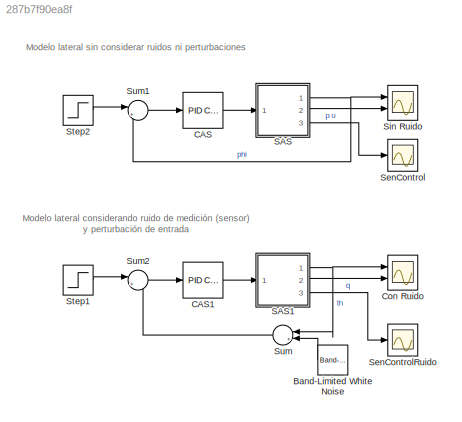
MODEL slx_287b7f90ea8f
KIND model
CONFIG AbsTol = auto
CONFIG EnableMultiTasking = off
CONFIG FixedStep = auto
CONFIG MaxStep = auto
CONFIG MinStep = auto
CONFIG RelTol = 1e-3
CONFIG SampleTimeConstraint = Unconstrained
CONFIG SolverName = VariableStepAuto
CONFIG StartTime = 0.0
CONFIG StopTime = 15
BLOCK [Reference] Band-Limited White Noise  REF=simulink/Sources/Band-Limited
White Noise
  Ports = [0, 1]
  SourceBlock = simulink/Sources/Band-Limited\nWhite Noise
  SourceProductBaseCode = SL
  SourceType = Band-Limited White Noise.
BLOCK [Reference] CAS  REF=slpidlib/PID Controller
  Ports = [1, 1]
  SourceBlock = slpidlib/PID Controller
  SourceProductBaseCode = SL
  SourceType = PID 1dof
BLOCK [Reference] CAS1  REF=slpidlib/PID Controller
  Ports = [1, 1]
  SourceBlock = slpidlib/PID Controller
  SourceProductBaseCode = SL
  SourceType = PID 1dof
BLOCK [Scope] Con Ruido
  Floating = off
  NumInputPorts = 2
  Ports = [2]
  ScopeSpecificationString = Simulink.scopes.TimeScopeBlockCfg('CurrentConfiguration', extmgr.ConfigurationSet(extmgr.Configuration('Core','General UI',true),extmgr.Configuration('Core','Source UI',true),extmgr.Configuration('Sources','WiredSimulink',true,'DataLoggingVariableName','ScopeData1'),extmgr.Configuration('Visuals','Time Domain',true,'PlotType','Line','SerializedDisplays',{struct('MinYLimReal','-17.09732','MaxYLimRe...<+2017ch>
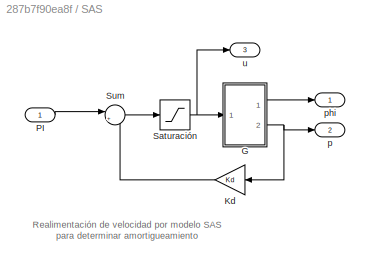
BLOCK [SubSystem] SAS
  Ports = [1, 3]
  RequestExecContextInheritance = off
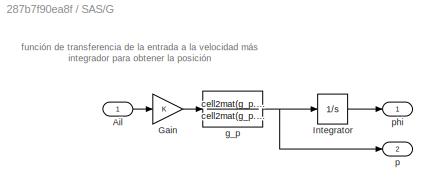
BLOCK [SubSystem] SAS/G
  Ports = [1, 2]
  RequestExecContextInheritance = off
BLOCK [Inport] SAS/G/Ail
BLOCK [Gain] SAS/G/Gain
BLOCK [Integrator] SAS/G/Integrator
  Ports = [1, 1]
BLOCK [TransferFcn] SAS/G/g_p
  Denominator = cell2mat(g_p.Denominator)
  Numerator = cell2mat(g_p.Numerator)
BLOCK [Outport] SAS/G/p
  Port = 2
BLOCK [Outport] SAS/G/phi
BLOCK [Gain] SAS/Kd
  Gain = Kd
BLOCK [Inport] SAS/PI
BLOCK [Saturate] SAS/Saturación
  LowerLimit = -30
  UpperLimit = 30
BLOCK [Sum] SAS/Sum
  Inputs = |+-
  Ports = [2, 1]
BLOCK [Outport] SAS/p
  Port = 2
BLOCK [Outport] SAS/phi
BLOCK [Outport] SAS/u
  Port = 3
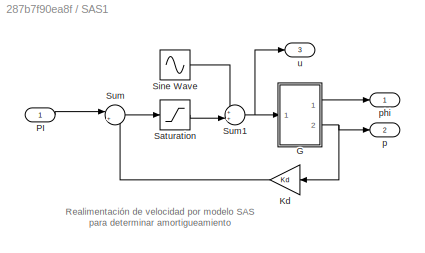
BLOCK [SubSystem] SAS1
  Ports = [1, 3]
  RequestExecContextInheritance = off
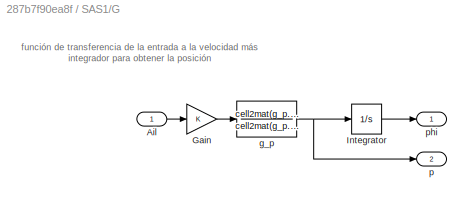
BLOCK [SubSystem] SAS1/G
  Ports = [1, 2]
  RequestExecContextInheritance = off
BLOCK [Inport] SAS1/G/Ail
BLOCK [Gain] SAS1/G/Gain
BLOCK [Integrator] SAS1/G/Integrator
  Ports = [1, 1]
BLOCK [TransferFcn] SAS1/G/g_p
  Denominator = cell2mat(g_p.Denominator)
  Numerator = cell2mat(g_p.Numerator)
BLOCK [Outport] SAS1/G/p
  Port = 2
BLOCK [Outport] SAS1/G/phi
BLOCK [Gain] SAS1/Kd
  Gain = Kd
BLOCK [Inport] SAS1/PI
BLOCK [Saturate] SAS1/Saturation
  LowerLimit = -30
  UpperLimit = 30
BLOCK [Sin] SAS1/Sine Wave
  Frequency = 12*pi
  Ports = [0, 1]
  SampleTime = 0
BLOCK [Sum] SAS1/Sum
  Inputs = |+-
  Ports = [2, 1]
BLOCK [Sum] SAS1/Sum1
  Inputs = ++|
  Ports = [2, 1]
BLOCK [Outport] SAS1/p
  Port = 2
BLOCK [Outport] SAS1/phi
BLOCK [Outport] SAS1/u
  Port = 3
BLOCK [Scope] SenControl
  Floating = off
  NumInputPorts = 1
  Ports = [1]
  ScopeSpecificationString = Simulink.scopes.TimeScopeBlockCfg('CurrentConfiguration', extmgr.ConfigurationSet(extmgr.Configuration('Core','General UI',true),extmgr.Configuration('Core','Source UI',true),extmgr.Configuration('Sources','WiredSimulink',true,'DataLoggingVariableName','ScopeData1'),extmgr.Configuration('Visuals','Time Domain',true,'SerializedDisplays',{struct('MinYLimReal','-3.54263','MaxYLimReal','33.72696','YLa...<+1490ch>
BLOCK [Scope] SenControlRuido
  Floating = off
  NumInputPorts = 1
  Ports = [1]
  ScopeSpecificationString = Simulink.scopes.TimeScopeBlockCfg('CurrentConfiguration', extmgr.ConfigurationSet(extmgr.Configuration('Core','General UI',true),extmgr.Configuration('Core','Source UI',true),extmgr.Configuration('Sources','WiredSimulink',true,'DataLoggingVariableName','ScopeData2'),extmgr.Configuration('Visuals','Time Domain',true,'SerializedDisplays',{struct('MinYLimReal','-37.9431','MaxYLimReal','31.5427','YLab...<+1493ch>
BLOCK [Scope] Sin Ruido
  Floating = off
  NumInputPorts = 2
  Ports = [2]
  ScopeSpecificationString = Simulink.scopes.TimeScopeBlockCfg('CurrentConfiguration', extmgr.ConfigurationSet(extmgr.Configuration('Core','General UI',true),extmgr.Configuration('Core','Source UI',true),extmgr.Configuration('Sources','WiredSimulink',true,'DataLoggingVariableName','ScopeData1'),extmgr.Configuration('Visuals','Time Domain',true,'PlotType','Line','SerializedDisplays',{struct('MinYLimReal','-78.90712','MaxYLimRe...<+2007ch>
BLOCK [Step] Step1
  After = 40
  SampleTime = 0
  Time = 0
BLOCK [Step] Step2
  After = 40
  SampleTime = 0
  Time = 0
BLOCK [Sum] Sum
  Inputs = |++
  NameLocation = top
  Ports = [2, 1]
BLOCK [Sum] Sum1
  Inputs = |+-
  Ports = [2, 1]
BLOCK [Sum] Sum2
  Inputs = |+-
  Ports = [2, 1]
ANNOTATION (root): Modelo lateral considerando ruido de medición (sensor) y perturbación de entrada
ANNOTATION (root): Modelo lateral sin considerar ruidos ni perturbaciones
ANNOTATION SAS: Realimentación de velocidad por modelo SAS para determinar amortigueamiento
ANNOTATION SAS/G: función de transferencia de la entrada a la velocidad más integrador para obtener la posición
ANNOTATION SAS1: Realimentación de velocidad por modelo SAS para determinar amortigueamiento
ANNOTATION SAS1/G: función de transferencia de la entrada a la velocidad más integrador para obtener la posición
LINE Band-Limited White Noise:1 -> Sum:2
LINE CAS1:1 -> SAS1:1
LINE CAS:1 -> SAS:1
LINE SAS/G/Ail:1 -> SAS/G/Gain:1
LINE SAS/G/Gain:1 -> SAS/G/g_p:1
LINE SAS/G/Integrator:1 -> SAS/G/phi:1
NET SAS/G/g_p:1 -> SAS/G/Integrator:1, SAS/G/p:1
LINE SAS/G:1 -> SAS/phi:1
NET SAS/G:2 -> SAS/Kd:1, SAS/p:1
LINE SAS/Kd:1 -> SAS/Sum:2
LINE SAS/PI:1 -> SAS/Sum:1
NET SAS/Saturación:1 -> SAS/G:1, SAS/u:1
LINE SAS/Sum:1 -> SAS/Saturación:1
LINE SAS1/G/Ail:1 -> SAS1/G/Gain:1
LINE SAS1/G/Gain:1 -> SAS1/G/g_p:1
LINE SAS1/G/Integrator:1 -> SAS1/G/phi:1
NET SAS1/G/g_p:1 -> SAS1/G/Integrator:1, SAS1/G/p:1
LINE SAS1/G:1 -> SAS1/phi:1
NET SAS1/G:2 -> SAS1/Kd:1, SAS1/p:1
LINE SAS1/Kd:1 -> SAS1/Sum:2
LINE SAS1/PI:1 -> SAS1/Sum:1
LINE SAS1/Saturation:1 -> SAS1/Sum1:2
LINE SAS1/Sine Wave:1 -> SAS1/Sum1:1
NET SAS1/Sum1:1 -> SAS1/G:1, SAS1/u:1
LINE SAS1/Sum:1 -> SAS1/Saturation:1
NET SAS1:1 -> Con Ruido:1, Sum:1
LINE SAS1:2 -> Con Ruido:2
LINE SAS1:3 -> SenControlRuido:1
NET SAS:1 -> Sin Ruido:1, Sum1:2
LINE SAS:2 -> Sin Ruido:2
LINE SAS:3 -> SenControl:1
LINE Step1:1 -> Sum2:1
LINE Step2:1 -> Sum1:1
LINE Sum1:1 -> CAS:1
LINE Sum2:1 -> CAS1:1
LINE Sum:1 -> Sum2:2
note: NET lines group one-source signal fan-out (src -> all destinations, sorted); 1:1 wires keep LINE
